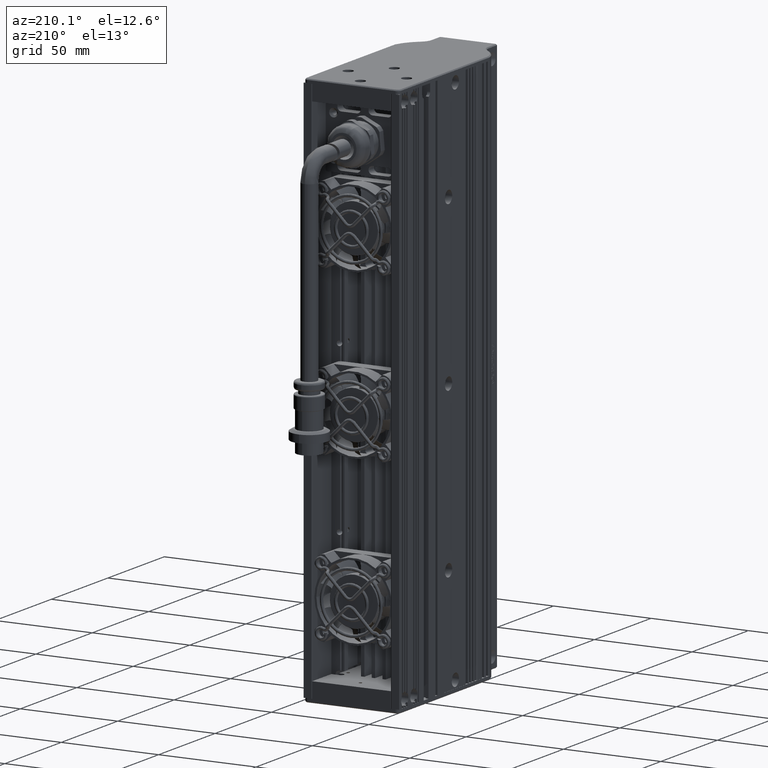
[diagram: clean part render]
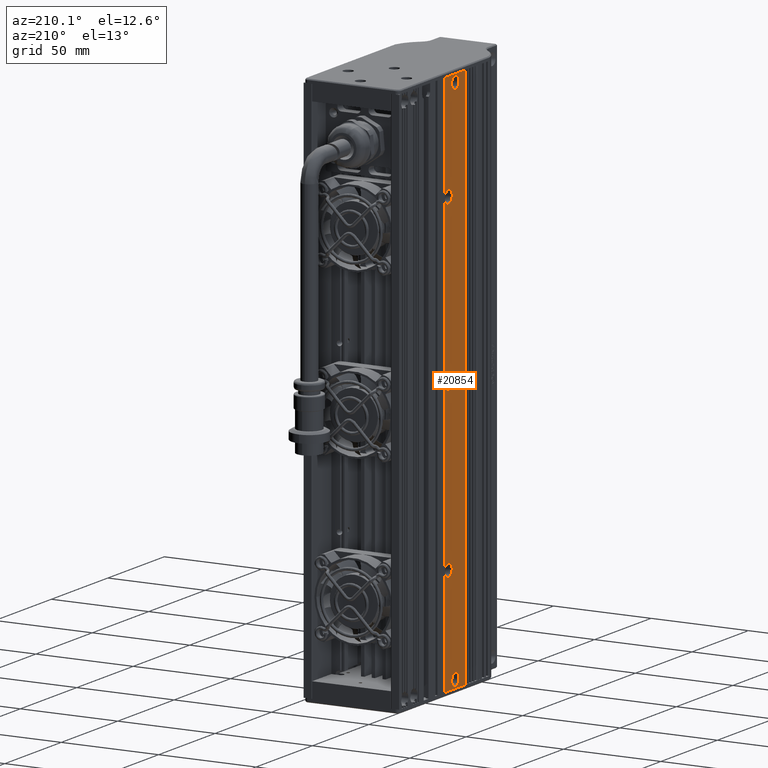
[diagram: same view with one face highlighted and labeled with its STEP entity id]
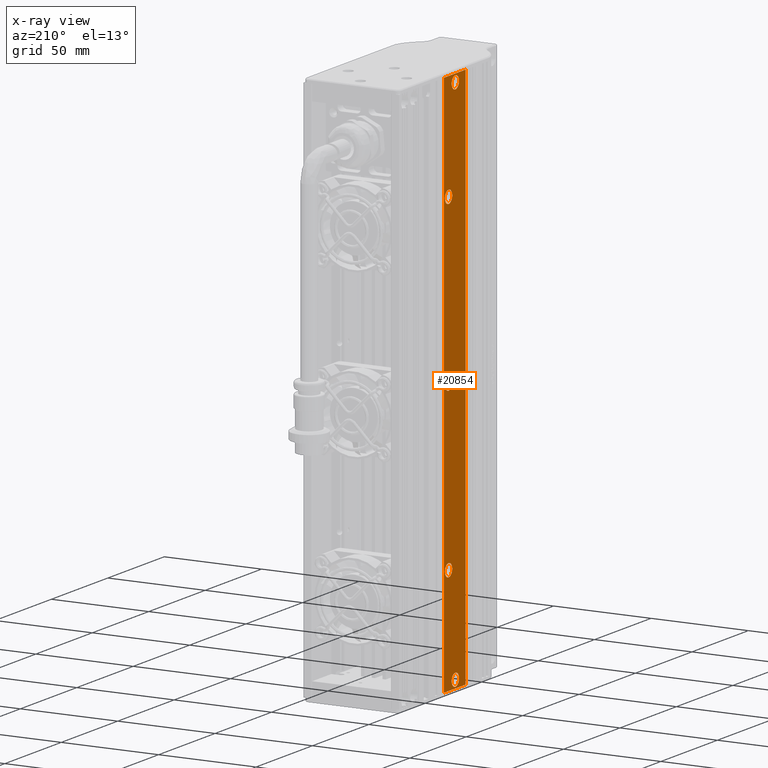
[diagram: x-ray of the same camera — body ghosted, the highlighted face saturated]
A machine part, auxiliary view. The second image highlights one B-rep face of the part: STEP entity #20854.
The next image is the same camera in x-ray: the body ghosted, the highlighted face saturated — about 0% of this face is hidden behind the body in this view.
In plain terms, the highlighted planar face has unit normal (1, 0, -0).
Its self-contained STEP definition (entity closure, byte-faithful):
#45 = AXIS2_PLACEMENT_3D ( 'NONE', #93388, #124500, #45037 ) ;
#830 = CARTESIAN_POINT ( 'NONE',  ( -61.96201180637544300, 0.004524203069467599300, -85.00000000000000000 ) ) ;
#2800 = EDGE_LOOP ( 'NONE', ( #46988, #93306 ) ) ;
#3922 = ORIENTED_EDGE ( 'NONE', *, *, #69189, .F. ) ;
#6235 = CARTESIAN_POINT ( 'NONE',  ( -61.96201180637544300, 0.004524203069467997400, -88.25000000000000000 ) ) ;
#6965 = VECTOR ( 'NONE', #14021, 1000.000000000000000 ) ;
#7462 = VERTEX_POINT ( 'NONE', #86271 ) ;
#7896 = CARTESIAN_POINT ( 'NONE',  ( -61.96201180637544300, 4.004524203069683700, 140.0000000000000000 ) ) ;
#9014 = AXIS2_PLACEMENT_3D ( 'NONE', #54282, #74090, #24907 ) ;
#9842 = CARTESIAN_POINT ( 'NONE',  ( -61.96201180637545000, 4.004524203069683700, -140.0000000000000000 ) ) ;
#11542 = DIRECTION ( 'NONE',  ( -1.000000000000000000, -0.0000000000000000000, -0.0000000000000000000 ) ) ;
#14021 = DIRECTION ( 'NONE',  ( -0.0000000000000000000, -0.0000000000000000000, -1.000000000000000000 ) ) ;
#14388 = CARTESIAN_POINT ( 'NONE',  ( -61.96201180637544300, 0.004524203069467599300, 85.00000000000000000 ) ) ;
#15180 = EDGE_LOOP ( 'NONE', ( #21531, #115883 ) ) ;
#16336 = AXIS2_PLACEMENT_3D ( 'NONE', #92543, #33393, #102434 ) ;
#16521 = CARTESIAN_POINT ( 'NONE',  ( -61.96201180637544300, -1.982278277896215200E-013, -3.250000000000009800 ) ) ;
#16998 = VERTEX_POINT ( 'NONE', #72581 ) ;
#20371 = EDGE_CURVE ( 'NONE', #28684, #16998, #99717, .T. ) ;
#20671 = FACE_BOUND ( 'NONE', #2800, .T. ) ;
#20854 = ADVANCED_FACE ( 'NONE', ( #93272, #40710, #94751, #20671, #100947, #50050 ), #122310, .F. ) ;
#21531 = ORIENTED_EDGE ( 'NONE', *, *, #54627, .F. ) ;
#22123 = CIRCLE ( 'NONE', #16336, 3.250000000000002700 ) ;
#22724 = EDGE_CURVE ( 'NONE', #84578, #78896, #127067, .T. ) ;
#24598 = VERTEX_POINT ( 'NONE', #9842 ) ;
#24907 = DIRECTION ( 'NONE',  ( 0.0000000000000000000, 0.0000000000000000000, 1.000000000000000000 ) ) ;
#25504 = AXIS2_PLACEMENT_3D ( 'NONE', #49027, #89169, #89577 ) ;
#25781 = ORIENTED_EDGE ( 'NONE', *, *, #110329, .F. ) ;
#28157 = AXIS2_PLACEMENT_3D ( 'NONE', #102877, #84339, #85181 ) ;
#28305 = EDGE_CURVE ( 'NONE', #7462, #98300, #22123, .T. ) ;
#28684 = VERTEX_POINT ( 'NONE', #31947 ) ;
#28878 = EDGE_CURVE ( 'NONE', #37735, #28684, #69666, .T. ) ;
#29914 = ORIENTED_EDGE ( 'NONE', *, *, #39231, .F. ) ;
#31853 = DIRECTION ( 'NONE',  ( 0.0000000000000000000, 0.0000000000000000000, 1.000000000000000000 ) ) ;
#31947 = CARTESIAN_POINT ( 'NONE',  ( -61.96201180637544300, -14.99547579693031800, 140.0000000000000000 ) ) ;
#33393 = DIRECTION ( 'NONE',  ( -1.000000000000000000, -0.0000000000000000000, -0.0000000000000000000 ) ) ;
#35903 = ORIENTED_EDGE ( 'NONE', *, *, #69121, .F. ) ;
#36585 = CARTESIAN_POINT ( 'NONE',  ( -61.96201180637544300, 0.004524203069467599300, 88.25000000000000000 ) ) ;
#36824 = CARTESIAN_POINT ( 'NONE',  ( -61.96201180637544300, -5.995475796930315400, 139.2500000000000000 ) ) ;
#37735 = VERTEX_POINT ( 'NONE', #121094 ) ;
#38264 = CIRCLE ( 'NONE', #9014, 3.249999999999988900 ) ;
#38416 = CIRCLE ( 'NONE', #51605, 3.250000000000002700 ) ;
#39231 = EDGE_CURVE ( 'NONE', #16998, #24598, #85493, .T. ) ;
#39443 = CIRCLE ( 'NONE', #113693, 3.250000000000002700 ) ;
#39604 = ORIENTED_EDGE ( 'NONE', *, *, #28878, .F. ) ;
#40121 = DIRECTION ( 'NONE',  ( -1.000000000000000000, -0.0000000000000000000, -0.0000000000000000000 ) ) ;
#40710 = FACE_BOUND ( 'NONE', #63968, .T. ) ;
#40984 = CIRCLE ( 'NONE', #72274, 3.250000000000002700 ) ;
#45037 = DIRECTION ( 'NONE',  ( 0.0000000000000000000, 0.0000000000000000000, 1.000000000000000000 ) ) ;
#45441 = CARTESIAN_POINT ( 'NONE',  ( -61.96201180637544300, -1.986258379993444100E-013, 3.249999999999982200 ) ) ;
#46988 = ORIENTED_EDGE ( 'NONE', *, *, #94088, .F. ) ;
#48186 = DIRECTION ( 'NONE',  ( 0.0000000000000000000, 0.0000000000000000000, 1.000000000000000000 ) ) ;
#49027 = CARTESIAN_POINT ( 'NONE',  ( -61.96201180637544300, 0.004524203069467599300, -85.00000000000000000 ) ) ;
#49879 = DIRECTION ( 'NONE',  ( -1.000000000000000000, -0.0000000000000000000, -0.0000000000000000000 ) ) ;
#50050 = FACE_BOUND ( 'NONE', #79295, .T. ) ;
#51605 = AXIS2_PLACEMENT_3D ( 'NONE', #71117, #11542, #31853 ) ;
#52378 = DIRECTION ( 'NONE',  ( 1.000000000000000000, 1.241146582044791300E-016, -0.0000000000000000000 ) ) ;
#52950 = ORIENTED_EDGE ( 'NONE', *, *, #70259, .F. ) ;
#54282 = CARTESIAN_POINT ( 'NONE',  ( -61.96201180637544300, 0.004524203069467599300, 85.00000000000000000 ) ) ;
#54627 = EDGE_CURVE ( 'NONE', #97320, #107733, #39443, .T. ) ;
#55787 = CARTESIAN_POINT ( 'NONE',  ( -61.96201180637544300, 0.004524203069467997400, 81.75000000000001400 ) ) ;
#56508 = CARTESIAN_POINT ( 'NONE',  ( -61.96201180637544300, -2.245475796930324300, 140.0000000000000000 ) ) ;
#58423 = AXIS2_PLACEMENT_3D ( 'NONE', #14388, #60246, #102458 ) ;
#60246 = DIRECTION ( 'NONE',  ( -1.000000000000000000, -0.0000000000000000000, -0.0000000000000000000 ) ) ;
#60518 = DIRECTION ( 'NONE',  ( 0.0000000000000000000, 0.0000000000000000000, 1.000000000000000000 ) ) ;
#61193 = VERTEX_POINT ( 'NONE', #36585 ) ;
#63078 = ORIENTED_EDGE ( 'NONE', *, *, #92773, .F. ) ;
#63968 = EDGE_LOOP ( 'NONE', ( #25781, #86318 ) ) ;
#64207 = VERTEX_POINT ( 'NONE', #45441 ) ;
#66485 = VERTEX_POINT ( 'NONE', #16521 ) ;
#66510 = AXIS2_PLACEMENT_3D ( 'NONE', #101125, #52378, #101549 ) ;
#67508 = CARTESIAN_POINT ( 'NONE',  ( -61.96201180637544300, -2.245475796930324300, -140.0000000000000000 ) ) ;
#68970 = CARTESIAN_POINT ( 'NONE',  ( -61.96201180637544300, -5.995475796930315400, -132.7500000000000000 ) ) ;
#69121 = EDGE_CURVE ( 'NONE', #24598, #37735, #115237, .T. ) ;
#69189 = EDGE_CURVE ( 'NONE', #78896, #84578, #87419, .T. ) ;
#69666 = LINE ( 'NONE', #56508, #115997 ) ;
#70259 = EDGE_CURVE ( 'NONE', #64207, #66485, #122248, .T. ) ;
#71117 = CARTESIAN_POINT ( 'NONE',  ( -61.96201180637544300, -5.995475796930315400, 136.0000000000000000 ) ) ;
#72274 = AXIS2_PLACEMENT_3D ( 'NONE', #109006, #49879, #48186 ) ;
#72581 = CARTESIAN_POINT ( 'NONE',  ( -61.96201180637544300, -14.99547579693031800, -140.0000000000000000 ) ) ;
#73054 = CARTESIAN_POINT ( 'NONE',  ( -61.96201180637544300, -5.995475796930315400, 136.0000000000000000 ) ) ;
#74090 = DIRECTION ( 'NONE',  ( -1.000000000000000000, -0.0000000000000000000, -0.0000000000000000000 ) ) ;
#75442 = DIRECTION ( 'NONE',  ( 1.241146582044791300E-016, -1.000000000000000000, -0.0000000000000000000 ) ) ;
#75797 = CARTESIAN_POINT ( 'NONE',  ( -61.96201180637544300, -5.995475796930315400, 132.7500000000000000 ) ) ;
#77421 = EDGE_CURVE ( 'NONE', #115108, #61193, #38264, .T. ) ;
#78896 = VERTEX_POINT ( 'NONE', #6235 ) ;
#79295 = EDGE_LOOP ( 'NONE', ( #116780, #3922 ) ) ;
#81786 = AXIS2_PLACEMENT_3D ( 'NONE', #830, #40121, #60518 ) ;
#83024 = DIRECTION ( 'NONE',  ( 0.0000000000000000000, 0.0000000000000000000, 1.000000000000000000 ) ) ;
#84339 = DIRECTION ( 'NONE',  ( -1.000000000000000000, -0.0000000000000000000, -0.0000000000000000000 ) ) ;
#84578 = VERTEX_POINT ( 'NONE', #109934 ) ;
#85181 = DIRECTION ( 'NONE',  ( 0.0000000000000000000, 0.0000000000000000000, 1.000000000000000000 ) ) ;
#85493 = LINE ( 'NONE', #67508, #88365 ) ;
#86271 = CARTESIAN_POINT ( 'NONE',  ( -61.96201180637544300, -5.995475796930315400, -139.2500000000000000 ) ) ;
#86318 = ORIENTED_EDGE ( 'NONE', *, *, #28305, .F. ) ;
#86955 = EDGE_LOOP ( 'NONE', ( #103576, #39604, #35903, #29914 ) ) ;
#87419 = CIRCLE ( 'NONE', #81786, 3.249999999999988900 ) ;
#88365 = VECTOR ( 'NONE', #107177, 1000.000000000000000 ) ;
#89169 = DIRECTION ( 'NONE',  ( -1.000000000000000000, -0.0000000000000000000, -0.0000000000000000000 ) ) ;
#89577 = DIRECTION ( 'NONE',  ( 0.0000000000000000000, 0.0000000000000000000, 1.000000000000000000 ) ) ;
#89791 = EDGE_CURVE ( 'NONE', #107733, #97320, #38416, .T. ) ;
#92543 = CARTESIAN_POINT ( 'NONE',  ( -61.96201180637544300, -5.995475796930315400, -136.0000000000000000 ) ) ;
#92773 = EDGE_CURVE ( 'NONE', #66485, #64207, #101713, .T. ) ;
#93272 = FACE_OUTER_BOUND ( 'NONE', #86955, .T. ) ;
#93306 = ORIENTED_EDGE ( 'NONE', *, *, #77421, .F. ) ;
#93388 = CARTESIAN_POINT ( 'NONE',  ( -61.96201180637544300, -1.986258379993444100E-013, -1.387778780781445700E-014 ) ) ;
#94088 = EDGE_CURVE ( 'NONE', #61193, #115108, #110398, .T. ) ;
#94751 = FACE_BOUND ( 'NONE', #15180, .T. ) ;
#97320 = VERTEX_POINT ( 'NONE', #36824 ) ;
#98300 = VERTEX_POINT ( 'NONE', #68970 ) ;
#99717 = LINE ( 'NONE', #113347, #6965 ) ;
#100947 = FACE_BOUND ( 'NONE', #112908, .T. ) ;
#101125 = CARTESIAN_POINT ( 'NONE',  ( -61.96201180637544300, -2.245475796930324300, 140.0000000000000000 ) ) ;
#101549 = DIRECTION ( 'NONE',  ( -1.241146582044791300E-016, 1.000000000000000000, 0.0000000000000000000 ) ) ;
#101713 = CIRCLE ( 'NONE', #28157, 3.249999999999996000 ) ;
#102434 = DIRECTION ( 'NONE',  ( 0.0000000000000000000, 0.0000000000000000000, 1.000000000000000000 ) ) ;
#102458 = DIRECTION ( 'NONE',  ( 0.0000000000000000000, 0.0000000000000000000, 1.000000000000000000 ) ) ;
#102877 = CARTESIAN_POINT ( 'NONE',  ( -61.96201180637544300, -1.986258379993444100E-013, -1.387778780781445700E-014 ) ) ;
#103576 = ORIENTED_EDGE ( 'NONE', *, *, #20371, .F. ) ;
#107177 = DIRECTION ( 'NONE',  ( -1.241146582044791300E-016, 1.000000000000000000, 0.0000000000000000000 ) ) ;
#107733 = VERTEX_POINT ( 'NONE', #75797 ) ;
#109006 = CARTESIAN_POINT ( 'NONE',  ( -61.96201180637544300, -5.995475796930315400, -136.0000000000000000 ) ) ;
#109066 = VECTOR ( 'NONE', #116746, 1000.000000000000000 ) ;
#109934 = CARTESIAN_POINT ( 'NONE',  ( -61.96201180637544300, 0.004524203069467599300, -81.75000000000001400 ) ) ;
#110329 = EDGE_CURVE ( 'NONE', #98300, #7462, #40984, .T. ) ;
#110398 = CIRCLE ( 'NONE', #58423, 3.249999999999988900 ) ;
#112908 = EDGE_LOOP ( 'NONE', ( #52950, #63078 ) ) ;
#113347 = CARTESIAN_POINT ( 'NONE',  ( -61.96201180637544300, -14.99547579693031800, 140.0000000000000000 ) ) ;
#113693 = AXIS2_PLACEMENT_3D ( 'NONE', #73054, #123198, #83024 ) ;
#115108 = VERTEX_POINT ( 'NONE', #55787 ) ;
#115237 = LINE ( 'NONE', #7896, #109066 ) ;
#115883 = ORIENTED_EDGE ( 'NONE', *, *, #89791, .F. ) ;
#115997 = VECTOR ( 'NONE', #75442, 1000.000000000000000 ) ;
#116746 = DIRECTION ( 'NONE',  ( 0.0000000000000000000, 0.0000000000000000000, 1.000000000000000000 ) ) ;
#116780 = ORIENTED_EDGE ( 'NONE', *, *, #22724, .F. ) ;
#121094 = CARTESIAN_POINT ( 'NONE',  ( -61.96201180637545000, 4.004524203069683700, 140.0000000000000000 ) ) ;
#122248 = CIRCLE ( 'NONE', #45, 3.249999999999996000 ) ;
#122310 = PLANE ( 'NONE',  #66510 ) ;
#123198 = DIRECTION ( 'NONE',  ( -1.000000000000000000, -0.0000000000000000000, -0.0000000000000000000 ) ) ;
#124500 = DIRECTION ( 'NONE',  ( -1.000000000000000000, -0.0000000000000000000, -0.0000000000000000000 ) ) ;
#127067 = CIRCLE ( 'NONE', #25504, 3.249999999999988900 ) ;